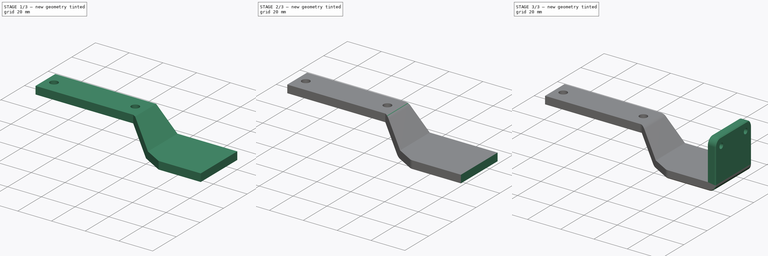
[diagram: build sequence overview — one tinted view per stage of 3, left to right]
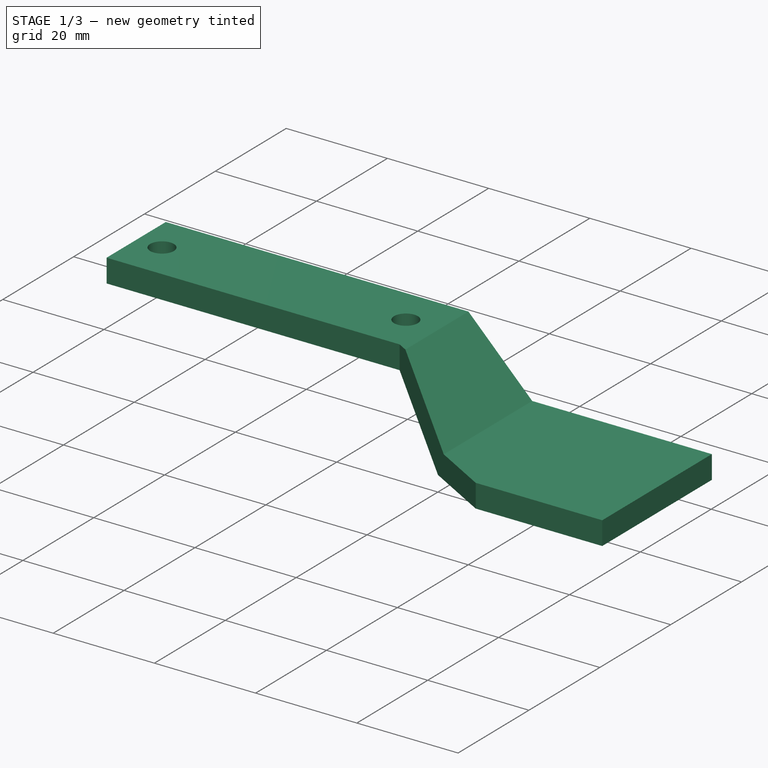
[diagram: stage 1 of 3 — iso view after this stage's code; geometry added in this stage tinted green]
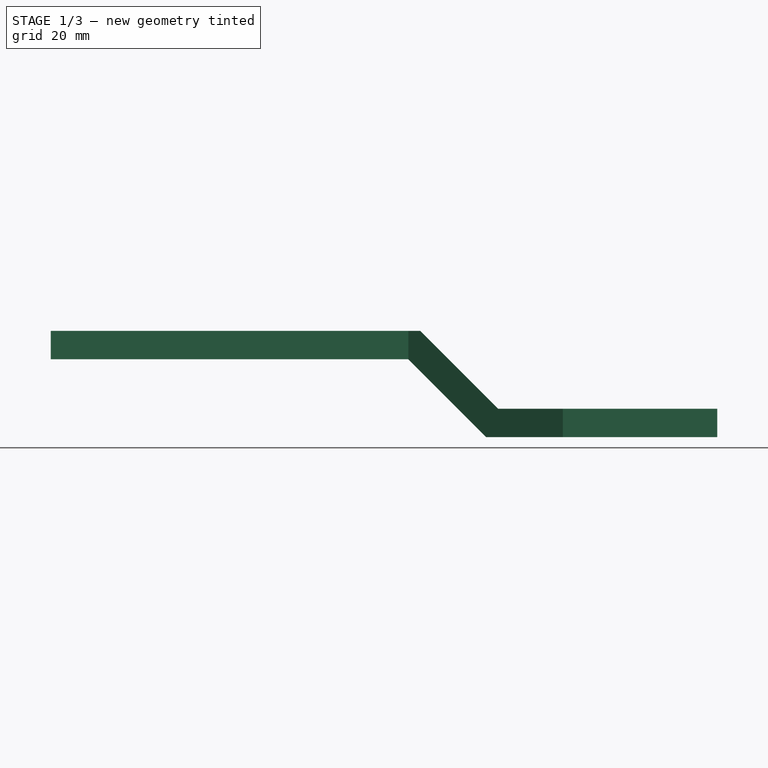
[diagram: stage 1 of 3 — front view after this stage's code; geometry added in this stage tinted green]
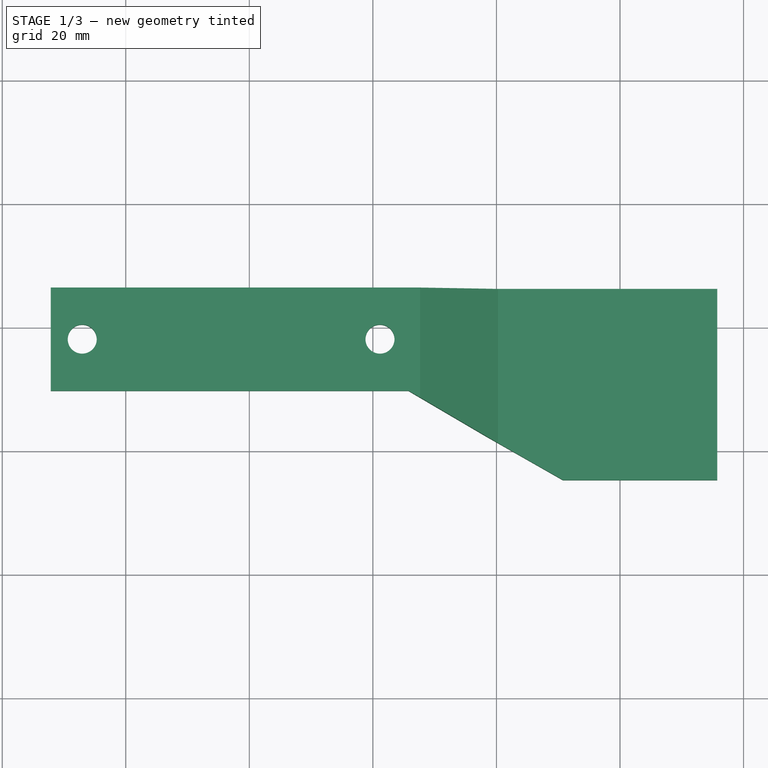
[diagram: stage 1 of 3 — top view after this stage's code; geometry added in this stage tinted green]
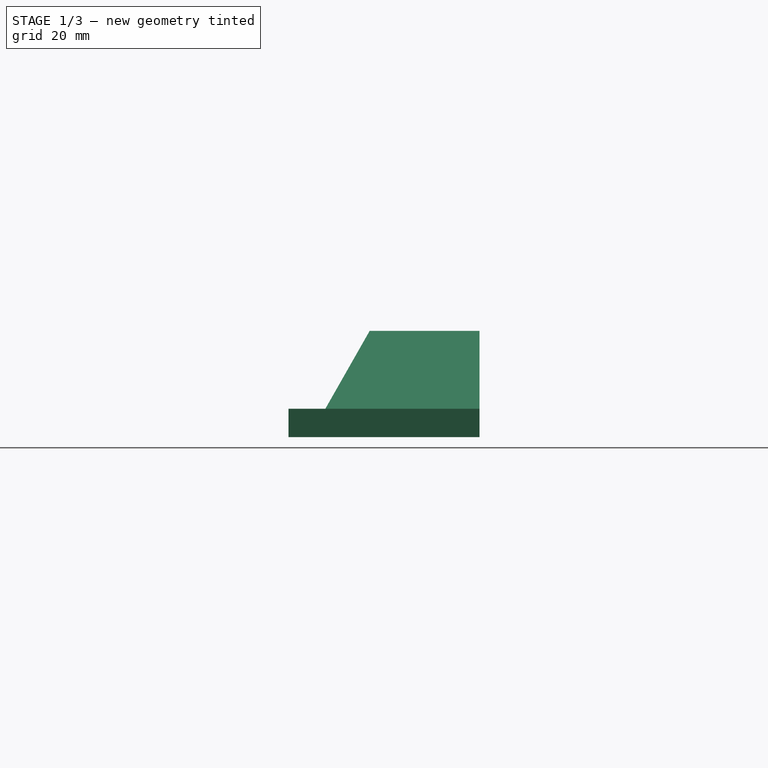
[diagram: stage 1 of 3 — right view after this stage's code; geometry added in this stage tinted green]
FCSTD DOCUMENT  (FreeCAD 2023.810R14555 (Git shallow))
Label: left-side nozzle brush mount
License: All rights reserved
LicenseURL: https://en.wikipedia.org/wiki/All_rights_reserved
objects: PartDesign::SubShapeBinder×8, Sketcher::SketchObject×4, PartDesign::Pad×3, Part::Feature×2, Part::Refine×2, PartDesign::Pocket×2, PartDesign::Fillet×2, PartDesign::Chamfer×1, PartDesign::Body×1
note: 45 computed .brp shape members not serialized (recipe doc carries the construction recipe); baked Part::Feature solids carry a one-line shape summary decoded from their .brp

FEATURE [Part::Feature] z_bed_rear001_solid  label="z_bed_rear001 (Solid)"
  FixShape = 1
  InvalidShape = false
  TreeRank = 4
  ValidateShape = false
  shape: bbox 28.5 x 54.5 x 16 mm, 10338 faces (baked)
FEATURE [Part::Feature] nozzle_brush_mount001_solid  label="nozzle_brush_mount001 (Solid)"
  FixShape = 1
  InvalidShape = false
  TreeRank = 6
  ValidateShape = false
  shape: bbox 57.9 x 44.7 x 22.55 mm, 1544 faces (baked)
FEATURE [Part::Refine] Refined  label="z_bed_rear001 (Solid)001"
  FixShape = 1
  InvalidShape = false
  Source = -> z_bed_rear001_solid
  TreeRank = 7
  ValidateShape = false
FEATURE [Part::Refine] Refined001  label="nozzle_brush_mount001 (Solid)001"
  FixShape = 1
  InvalidShape = false
  Source = -> nozzle_brush_mount001_solid
  TreeRank = 8
  ValidateShape = false
FEATURE [PartDesign::SubShapeBinder] Binder  label="Binder(z_bed_rear001 (Solid)001)"
  BindCopyOnChange = 0
  BindMode = 0
  ClaimChildren = false
  Context = -> Body [Binder.]
  EdgeTolerance = 1e-06
  FillStyle = 0
  FixShape = 1
  Fuse = false
  InvalidShape = false
  MakeFace = true
  MergeEdges = true
  OffsetFill = false
  OffsetIntersection = false
  OffsetJoinType = 0
  OffsetOpenResult = false
  Outline = false
  PartialLoad = false
  Relative = true
  SplitEdges = false
  Support = -> [Refined[Face3578]]
  TightBound = false
  TreeRank = 21
  ValidateShape = false
  _Version = 8
FEATURE [PartDesign::SubShapeBinder] Binder001  label="Binder001(z_bed_rear001 (Solid)001)"
  BindCopyOnChange = 0
  BindMode = 0
  ClaimChildren = false
  Context = -> Body [Binder001.]
  EdgeTolerance = 1e-06
  FillStyle = 0
  FixShape = 1
  Fuse = false
  InvalidShape = false
  MakeFace = true
  MergeEdges = true
  OffsetFill = false
  OffsetIntersection = false
  OffsetJoinType = 0
  OffsetOpenResult = false
  Outline = false
  PartialLoad = false
  Relative = true
  SplitEdges = false
  Support = -> [Refined[Face6035]]
  TightBound = false
  TreeRank = 22
  ValidateShape = false
  _Version = 8
FEATURE [PartDesign::SubShapeBinder] Binder002  label="Binder002(z_bed_rear001 (Solid)001)..."
  BindCopyOnChange = 0
  BindMode = 0
  ClaimChildren = false
  Context = -> Body [Binder002.]
  EdgeTolerance = 1e-06
  FillStyle = 0
  FixShape = 1
  Fuse = false
  InvalidShape = false
  MakeFace = true
  MergeEdges = true
  OffsetFill = false
  OffsetIntersection = false
  OffsetJoinType = 0
  OffsetOpenResult = false
  Outline = false
  PartialLoad = false
  Relative = true
  SplitEdges = false
  Support = -> [Refined[Face6010,Face6009,Face6007,Face6005,Face6006,Face6003]]
  TightBound = false
  TreeRank = 23
  ValidateShape = false
  _Version = 8
FEATURE [PartDesign::SubShapeBinder] Binder003  label="Binder003(z_bed_rear001 (Solid)001)..."
  BindCopyOnChange = 0
  BindMode = 0
  ClaimChildren = false
  Context = -> Body [Binder003.]
  EdgeTolerance = 1e-06
  FillStyle = 0
  FixShape = 1
  Fuse = false
  InvalidShape = false
  MakeFace = true
  MergeEdges = true
  OffsetFill = false
  OffsetIntersection = false
  OffsetJoinType = 0
  OffsetOpenResult = false
  Outline = false
  PartialLoad = false
  Relative = true
  SplitEdges = false
  Support = -> [Refined[Face5998],Binder002]
  TightBound = false
  TreeRank = 24
  ValidateShape = false
  _Version = 8
FEATURE [PartDesign::SubShapeBinder] Binder004  label="Binder004(nozzle_brush_mount001 (Solid)001)"
  BindCopyOnChange = 0
  BindMode = 0
  ClaimChildren = false
  Context = -> Body [Binder004.]
  EdgeTolerance = 1e-06
  FillStyle = 0
  FixShape = 1
  Fuse = false
  InvalidShape = false
  MakeFace = true
  MergeEdges = true
  OffsetFill = false
  OffsetIntersection = false
  OffsetJoinType = 0
  OffsetOpenResult = false
  Outline = false
  PartialLoad = false
  Relative = true
  SplitEdges = false
  Support = -> [Refined001[Face12]]
  TightBound = false
  TreeRank = 25
  ValidateShape = false
  _Version = 8
FEATURE [PartDesign::SubShapeBinder] Binder005  label="Binder005(z_bed_rear001 (Solid)001)..."
  BindCopyOnChange = 0
  BindMode = 0
  ClaimChildren = false
  Context = -> Body [Binder005.]
  EdgeTolerance = 1e-06
  FillStyle = 0
  FixShape = 1
  Fuse = false
  InvalidShape = false
  MakeFace = true
  MergeEdges = true
  OffsetFill = false
  OffsetIntersection = false
  OffsetJoinType = 0
  OffsetOpenResult = false
  Outline = false
  PartialLoad = false
  Relative = true
  SplitEdges = false
  Support = -> [Refined[Face6000,Face5999,Face6001]]
  TightBound = false
  TreeRank = 27
  ValidateShape = false
  _Version = 8
FEATURE [PartDesign::SubShapeBinder] Binder006  label="Binder006(z_bed_rear001 (Solid)001)"
  BindCopyOnChange = 0
  BindMode = 0
  ClaimChildren = false
  Context = -> Body [Binder006.]
  EdgeTolerance = 1e-06
  FillStyle = 0
  FixShape = 1
  Fuse = false
  InvalidShape = false
  MakeFace = true
  MergeEdges = true
  OffsetFill = false
  OffsetIntersection = false
  OffsetJoinType = 0
  OffsetOpenResult = false
  Outline = false
  PartialLoad = false
  Relative = true
  SplitEdges = false
  Support = -> [Refined[Face6017]]
  TightBound = false
  TreeRank = 37
  ValidateShape = false
  _Version = 8
FEATURE [PartDesign::SubShapeBinder] Binder007  label="Binder007(z_bed_rear001 (Solid)001)"
  BindCopyOnChange = 0
  BindMode = 0
  ClaimChildren = false
  Context = -> Body [Binder007.]
  EdgeTolerance = 1e-06
  FillStyle = 0
  FixShape = 1
  Fuse = false
  InvalidShape = false
  MakeFace = true
  MergeEdges = true
  OffsetFill = false
  OffsetIntersection = false
  OffsetJoinType = 0
  OffsetOpenResult = false
  Outline = false
  PartialLoad = false
  Relative = true
  SplitEdges = false
  Support = -> [Refined[Face6017]]
  TightBound = false
  TreeRank = 41
  ValidateShape = false
  _Version = 8
FEATURE [Sketcher::SketchObject] Sketch
  ArcFitTolerance = 1e-06
  AttachmentSupport = -> [Binder]
  ExternalBSplineMaxDegree = 5
  ExternalBSplineTolerance = 0.0001
  ExternalGeometry = -> [Binder002,Binder005,Binder003,Binder,Binder001,Binder004,Binder007]
  FixShape = 1
  FullyConstrained = true
  InternalTolerance = 1e-06
  InvalidShape = false
  MakeInternals = false
  MapMode = 5
  Placement = pos=(0,0,3.2e-15) rot=(1,0,0;3.14159rad)
  Support = -> [Binder]
  TreeRank = 26
  ValidateShape = false
  sketch-geometry (22):
    g0: Circle [constr] CenterX=125.75 CenterY=-124.249 CenterZ=0 NormalX=0 NormalY=0 NormalZ=1 AngleXU=0 Radius=5.5
    g1: Circle [constr] CenterX=125.75 CenterY=-139.549 CenterZ=0 NormalX=0 NormalY=0 NormalZ=1 AngleXU=0 Radius=5.5
    g2: Circle [constr] CenterX=125.75 CenterY=-139.549 CenterZ=0 NormalX=0 NormalY=0 NormalZ=1 AngleXU=0 Radius=2.7
    g3: Circle [constr] CenterX=125.75 CenterY=-124.249 CenterZ=0 NormalX=0 NormalY=0 NormalZ=1 AngleXU=0 Radius=2.7
    g4: LineSegment StartX=113.75 StartY=-146.249 StartZ=0 EndX=132.75 EndY=-146.249 EndZ=0
    g5: LineSegment StartX=135.75 StartY=-146.249 StartZ=0 EndX=135.75 EndY=-115.319 EndZ=0
    g6: LineSegment StartX=135.75 StartY=-115.319 StartZ=0 EndX=110.75 EndY=-115.319 EndZ=0
    g7: LineSegment StartX=27.85 StartY=-146.249 StartZ=0 EndX=27.85 EndY=-129.549 EndZ=0
    g8: LineSegment StartX=113.75 StartY=-146.249 StartZ=0 EndX=85.75 EndY=-146.249 EndZ=0
    g9: LineSegment StartX=85.75 StartY=-146.249 StartZ=0 EndX=27.85 EndY=-146.249 EndZ=0
    g10: Circle [constr] CenterX=15.0632 CenterY=-45.6687 CenterZ=0 NormalX=0 NormalY=0 NormalZ=1 AngleXU=0 Radius=2.35
    g11: Circle [constr] CenterX=63.2632 CenterY=-45.6687 CenterZ=0 NormalX=0 NormalY=0 NormalZ=1 AngleXU=0 Radius=2.35
    g12: LineSegment [constr] StartX=15.0632 StartY=-45.6687 StartZ=0 EndX=9.9632 EndY=-45.6687 EndZ=0
    g13: LineSegment [constr] StartX=63.2632 StartY=-45.6687 StartZ=0 EndX=67.8632 EndY=-45.6687 EndZ=0
    g14: LineSegment [constr] StartX=27.85 StartY=-146.249 StartZ=0 EndX=27.85 EndY=-137.899 EndZ=0
    g15: LineSegment [constr] StartX=27.85 StartY=-137.899 StartZ=0 EndX=32.95 EndY=-137.899 EndZ=0
    g16: LineSegment [constr] StartX=81.15 StartY=-137.899 StartZ=0 EndX=85.75 EndY=-137.899 EndZ=0
    g17: LineSegment StartX=27.85 StartY=-129.549 StartZ=0 EndX=85.75 EndY=-129.549 EndZ=0
    g18: LineSegment StartX=85.75 StartY=-129.549 StartZ=0 EndX=110.75 EndY=-115.319 EndZ=0
    g19: Circle CenterX=32.95 CenterY=-137.899 CenterZ=0 NormalX=0 NormalY=0 NormalZ=1 AngleXU=0 Radius=2.35
    g20: Circle CenterX=81.15 CenterY=-137.899 CenterZ=0 NormalX=0 NormalY=0 NormalZ=1 AngleXU=0 Radius=2.35
    g21: LineSegment StartX=132.75 StartY=-146.249 StartZ=0 EndX=135.75 EndY=-146.249 EndZ=0
  constraints (60):
    c: PointOnObject(g-6,g0)
    c: PointOnObject(g-5,g0)
    c: PointOnObject(g-10,g0)
    c: PointOnObject(g-8,g1)
    c: PointOnObject(g-7,g1)
    c: PointOnObject(g-9,g1)
    c: Coincident(g2,g1)
    c: PointOnObject(g-4,g2)
    c: Coincident(g3,g0)
    c: PointOnObject(g-3,g3)
    c: Coincident(g-11,g4)
    c: Coincident(g4,g-11)
    c: Vertical(g5)
    c: Coincident(g6,g-12)
    c: Horizontal(g6)
    c: Vertical(g7)
    c: Equal(g-13,g7)
    c: Coincident(g8,g4)
    c: Horizontal(g8)
    c: Coincident(g9,g8)
    c: Coincident(g9,g7)
    c: Horizontal(g9)
    c: DistanceX(g8,g-12) = 25
    c: Equal(g9,g-14)
    c: PointOnObject(g-16,g10)
    c: PointOnObject(g-17,g10)
    c: PointOnObject(g-21,g10)
    c: PointOnObject(g-18,g11)
    c: PointOnObject(g-19,g11)
    c: PointOnObject(g-20,g11)
    c: Coincident(g12,g10)
    c: PointOnObject(g12,g-13)
    c: Horizontal(g12)
    c: Coincident(g13,g11)
    c: PointOnObject(g13,g-15)
    c: Horizontal(g13)
    c: Coincident(g14,g7)
    c: Coincident(g15,g14)
    c: Horizontal(g15)
    c: Horizontal(g16)
    c: Vertical(g16,g8)
    c: Equal(g16,g13)
    c: Equal(g12,g15)
    c: Symmetric(g7,g7,g14)
    c: Horizontal(g15,g16)
    c: Coincident(g17,g7)
    c: Horizontal(g17)
    c: Coincident(g18,g17)
    c: Coincident(g18,g6)
    c: Coincident(g19,g15)
    c: Coincident(g20,g16)
    c: Equal(g10,g19)
    c: Equal(g11,g20)
    c: Diameter(g0) = 11
    c: Vertical(g8,g17)
    c: Coincident(g6,g5)
    c: Coincident(g21,g4)
    c: Horizontal(g21)
    c: PointOnObject(g-22,g5)
    c: Coincident(g5,g21)
FEATURE [PartDesign::Pad] Pad
  AddSubType = 0
  AlongSketchNormal = false
  AutoTaperInnerAngle = true
  CheckUpToFaceLimits = true
  ClaimChildren = false
  Direction = (0,0,-1)
  Fit = 0
  FitJoin = 0
  FixShape = 1
  InnerFit = 0
  InnerFitJoin = 0
  InvalidShape = false
  Length = 4.6
  Length2 = 12.6
  Linearize = true
  NewSolid = false
  Profile = -> Sketch
  ReferenceAxis = -> Sketch [N_Axis]
  Refine = true
  Suppress = false
  TaperInnerAngle = 0
  TaperInnerAngleRev = 0
  TreeRank = 28
  Type = 4
  ValidateShape = false
  _ProfileBasedVersion = 1
FEATURE [Sketcher::SketchObject] Sketch001
  ArcFitTolerance = 1e-06
  AttachmentSupport = -> [XZ_Plane]
  ExternalBSplineMaxDegree = 5
  ExternalBSplineTolerance = 0.0001
  ExternalGeometry = -> [Binder,Binder001,Binder007]
  FixShape = 1
  FullyConstrained = true
  InternalTolerance = 1e-06
  InvalidShape = false
  MakeInternals = false
  MapMode = 5
  Placement = pos=(0,0,0) rot=(1,0,0;1.5708rad)
  Support = -> [XZ_Plane]
  TreeRank = 30
  ValidateShape = false
  sketch-geometry (4):
    g0: LineSegment StartX=110.75 StartY=3.1e-14 StartZ=0 EndX=135.75 EndY=3.1e-14 EndZ=0
    g1: LineSegment StartX=135.75 StartY=3.1e-14 StartZ=0 EndX=135.75 EndY=15 EndZ=0
    g2: LineSegment StartX=135.75 StartY=15 StartZ=0 EndX=110.75 EndY=15 EndZ=0
    g3: LineSegment StartX=110.75 StartY=15 StartZ=0 EndX=110.75 EndY=3.02e-14 EndZ=0
  constraints (11):
    c: Coincident(g2,g3)
    c: Coincident(g3,g0)
    c: Horizontal(g0)
    c: Horizontal(g2)
    c: Vertical(g1)
    c: Vertical(g3)
    c: Coincident(g2,g-5)
    c: PointOnObject(g-6,g1)
    c: Coincident(g1,g2)
    c: Coincident(g0,g1)
    c: PointOnObject(g-3,g0)
FEATURE [PartDesign::Pocket] Pocket
  AddSubType = 1
  AlongSketchNormal = false
  AutoTaperInnerAngle = true
  BaseFeature = -> Pad
  CheckUpToFaceLimits = true
  ClaimChildren = false
  Direction = (0,1,-2e-16)
  Fit = 0
  FitJoin = 0
  FixShape = 1
  InnerFit = 0
  InnerFitJoin = 0
  InvalidShape = false
  Length = 5
  Length2 = 10
  Linearize = true
  Midplane = true
  NewSolid = false
  Profile = -> Sketch001
  ReferenceAxis = -> Sketch001 [N_Axis]
  Refine = true
  Suppress = false
  TaperInnerAngle = 0
  TaperInnerAngleRev = 0
  TreeRank = 31
  Type = 1
  ValidateShape = false
  _ProfileBasedVersion = 1
  _Version = 1
FEATURE [Sketcher::SketchObject] Sketch002
  ArcFitTolerance = 1e-06
  AttachmentSupport = -> [XZ_Plane]
  ExternalBSplineMaxDegree = 5
  ExternalBSplineTolerance = 0.0001
  ExternalGeometry = -> [Sketch,Sketch001,Pocket]
  FixShape = 1
  FullyConstrained = true
  InternalTolerance = 1e-06
  InvalidShape = false
  MakeInternals = false
  MapMode = 5
  Placement = pos=(0,0,0) rot=(1,0,0;1.5708rad)
  Support = -> [XZ_Plane]
  TreeRank = 32
  ValidateShape = false
  sketch-geometry (14):
    g0: LineSegment StartX=27.85 StartY=8 StartZ=0 EndX=85.75 EndY=8 EndZ=0
    g1: LineSegment StartX=85.75 StartY=8 StartZ=0 EndX=98.35 EndY=-4.6 EndZ=0
    g2: LineSegment StartX=98.35 StartY=-4.6 StartZ=0 EndX=110.75 EndY=-4.6 EndZ=0
    g3: LineSegment StartX=110.75 StartY=-4.6 StartZ=0 EndX=110.75 EndY=-17 EndZ=0
    g4: LineSegment StartX=110.75 StartY=-17 StartZ=0 EndX=15.45 EndY=-17 EndZ=0
    g5: LineSegment StartX=15.45 StartY=-17 StartZ=0 EndX=15.45 EndY=8 EndZ=0
    g6: LineSegment StartX=15.45 StartY=8 StartZ=0 EndX=27.85 EndY=8 EndZ=0
    g7: LineSegment StartX=110.75 StartY=3.02e-14 StartZ=0 EndX=100.255 EndY=0 EndZ=0
    g8: LineSegment StartX=100.255 StartY=0 StartZ=0 EndX=87.6554 EndY=12.6 EndZ=0
    g9: LineSegment StartX=87.6554 StartY=12.6 StartZ=0 EndX=87.6554 EndY=25 EndZ=0
    g10: LineSegment StartX=87.6554 StartY=25 StartZ=0 EndX=110.75 EndY=25 EndZ=0
    g11: LineSegment StartX=110.75 StartY=25 StartZ=0 EndX=110.75 EndY=2.84e-14 EndZ=0
    g12: LineSegment [constr] StartX=85.75 StartY=8 StartZ=0 EndX=85.75 EndY=12.6 EndZ=0
    g13: LineSegment [constr] StartX=100.255 StartY=0 StartZ=0 EndX=97.0027 EndY=-3.25269 EndZ=0
  constraints (39):
    c: Horizontal(g0)
    c: Coincident(g0,g1)
    c: Vertical(g-3,g0)
    c: Vertical(g0,g-3)
    c: DistanceY(g-3,g0) = 8
    c: Coincident(g2,g1)
    c: Coincident(g2,g-5)
    c: Horizontal(g2)
    c: Coincident(g3,g2)
    c: Vertical(g3)
    c: Coincident(g4,g3)
    c: Horizontal(g4)
    c: Coincident(g5,g4)
    c: Vertical(g5)
    c: Coincident(g6,g5)
    c: Coincident(g6,g0)
    c: Horizontal(g6)
    c: Coincident(g-4,g7)
    c: PointOnObject(g7,g-1)
    c: Coincident(g7,g8)
    c: Coincident(g8,g9)
    c: Coincident(g9,g10)
    c: Horizontal(g10)
    c: Coincident(g10,g11)
    c: Coincident(g11,g7)
    c: Vertical(g11)
    c: Equal(g6,g2)
    c: Equal(g3,g6)
    c: Parallel(g1,g8)
    c: Vertical(g9)
    c: Equal(g9,g2)
    c: PointOnObject(g8,g-6)
    c: Coincident(g12,g0)
    c: Coincident(g12,g-6)
    c: Coincident(g13,g7)
    c: PointOnObject(g13,g1)
    c: Perpendicular(g1,g13)
    c: Equal(g13,g12)
    c: Angle(g8) = 2.35619
FEATURE [PartDesign::Pocket] Pocket001
  AddSubType = 1
  AlongSketchNormal = false
  AutoTaperInnerAngle = true
  BaseFeature = -> Pocket
  CheckUpToFaceLimits = true
  ClaimChildren = false
  Direction = (0,1,-2e-16)
  Fit = 0
  FitJoin = 0
  FixShape = 1
  InnerFit = 0
  InnerFitJoin = 0
  InvalidShape = false
  Length = 5
  Length2 = 10
  Linearize = true
  Midplane = true
  NewSolid = false
  Profile = -> Sketch002
  ReferenceAxis = -> Sketch002 [N_Axis]
  Refine = true
  Suppress = false
  TaperInnerAngle = 0
  TaperInnerAngleRev = 0
  TreeRank = 33
  Type = 1
  ValidateShape = false
  _ProfileBasedVersion = 1
  _Version = 1
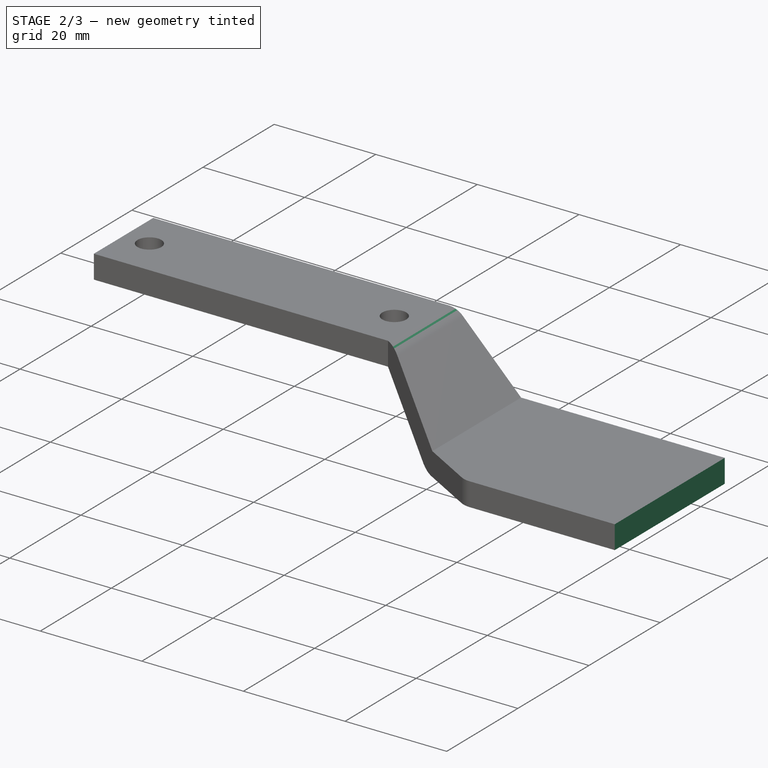
[diagram: stage 2 of 3 — iso view after this stage's code; geometry added in this stage tinted green]
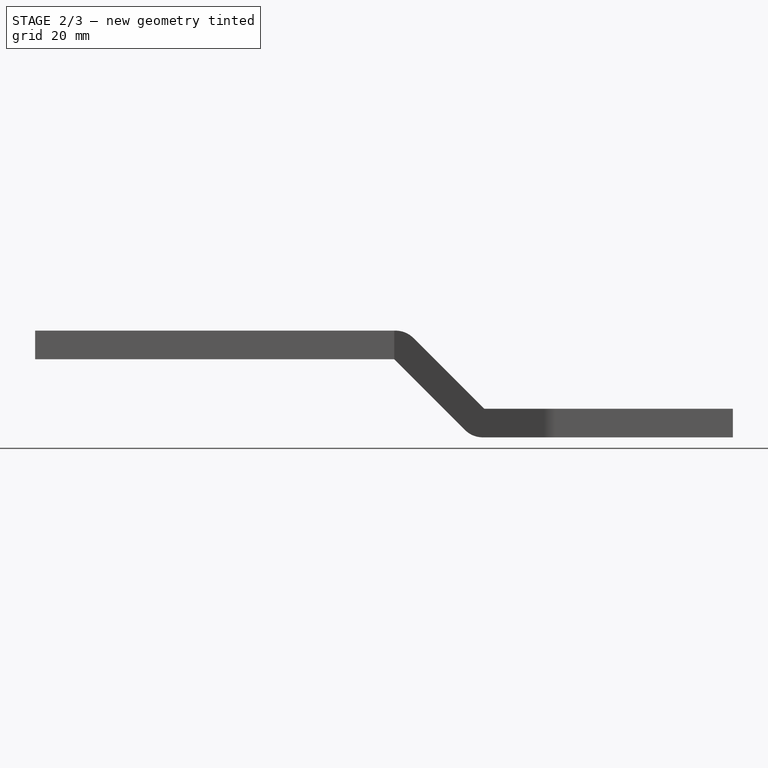
[diagram: stage 2 of 3 — front view after this stage's code; geometry added in this stage tinted green]
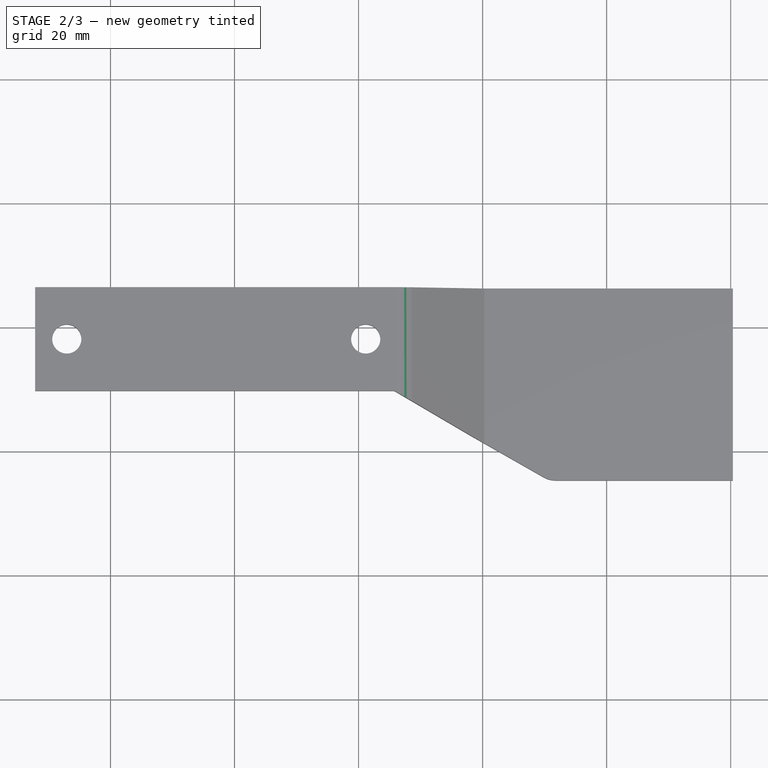
[diagram: stage 2 of 3 — top view after this stage's code; geometry added in this stage tinted green]
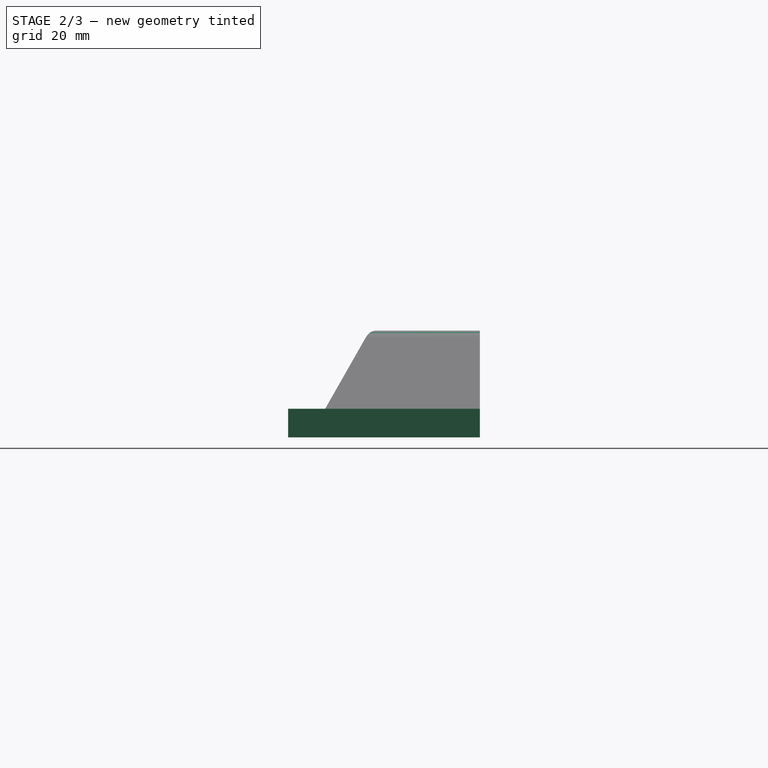
[diagram: stage 2 of 3 — right view after this stage's code; geometry added in this stage tinted green]
FEATURE [PartDesign::Fillet] Fillet
  AddSubType = 0
  Base = -> Pocket001 [Edge28,Edge6,Edge29]
  BaseFeature = -> Pocket001
  FixShape = 1
  InvalidShape = false
  NewSolid = false
  Radius = 4
  Refine = true
  SupportTransform = false
  Suppress = false
  TreeRank = 34
  UseAllEdges = false
  ValidateShape = false
FEATURE [PartDesign::Pad] Pad001
  AddSubType = 0
  AlongSketchNormal = false
  AutoTaperInnerAngle = true
  BaseFeature = -> Fillet
  CheckUpToFaceLimits = true
  ClaimChildren = false
  Direction = (1,0,0)
  Fit = 0
  FitJoin = 0
  FixShape = 1
  InnerFit = 0
  InnerFitJoin = 0
  InvalidShape = false
  Length = 4.6
  Length2 = 10
  Linearize = true
  NewSolid = false
  Profile = -> Fillet [Face4]
  Refine = true
  Suppress = false
  TaperInnerAngle = 0
  TaperInnerAngleRev = 0
  TreeRank = 35
  Type = 0
  ValidateShape = false
  _ProfileBasedVersion = 1
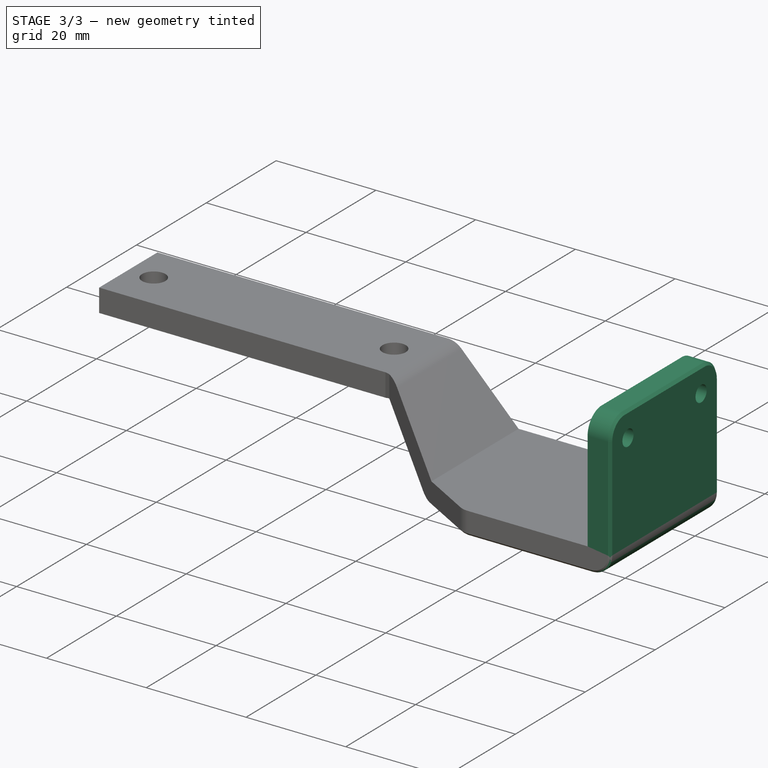
[diagram: stage 3 of 3 — iso view after this stage's code; geometry added in this stage tinted green]
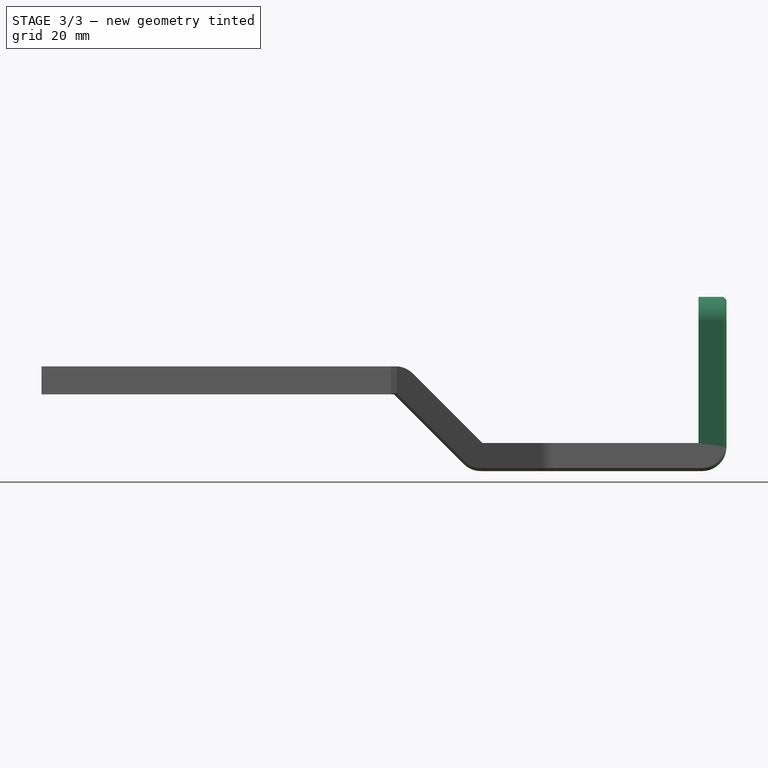
[diagram: stage 3 of 3 — front view after this stage's code; geometry added in this stage tinted green]
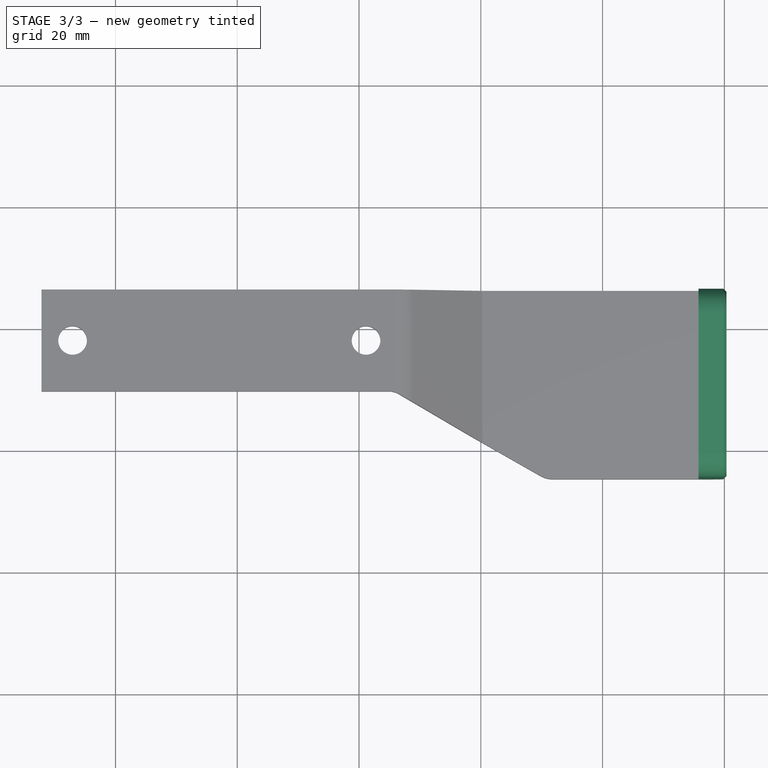
[diagram: stage 3 of 3 — top view after this stage's code; geometry added in this stage tinted green]
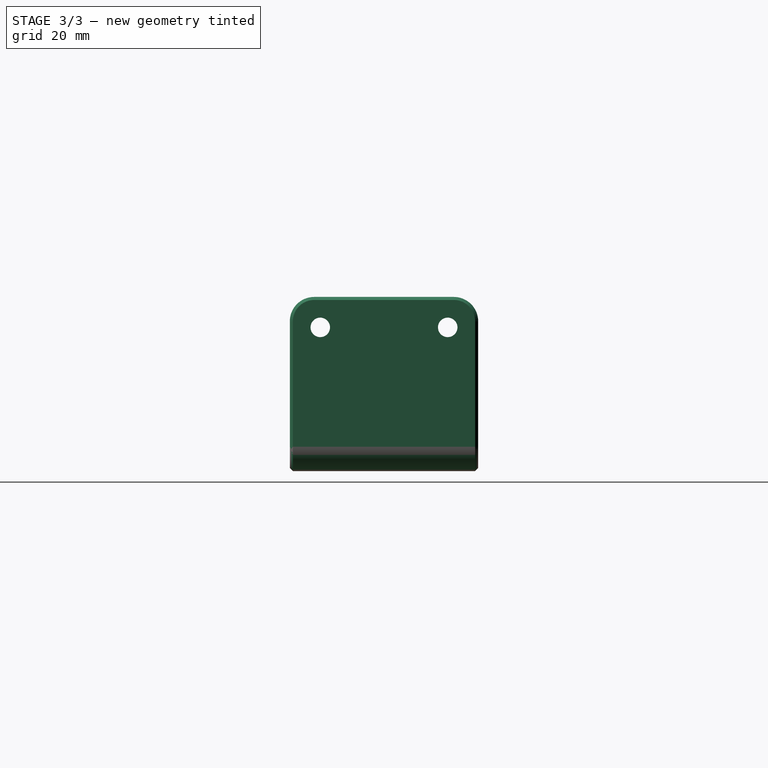
[diagram: stage 3 of 3 — right view after this stage's code; geometry added in this stage tinted green]
FEATURE [Sketcher::SketchObject] Sketch003
  ArcFitTolerance = 1e-06
  AttachmentSupport = -> [Pad001]
  ExternalBSplineMaxDegree = 5
  ExternalBSplineTolerance = 0.0001
  ExternalGeometry = -> [Binder006,Pad001]
  FixShape = 1
  FullyConstrained = true
  InternalTolerance = 1e-06
  InvalidShape = false
  MakeInternals = false
  MapMode = 5
  Placement = pos=(140.35,0,0) rot=(0.57735,0.57735,0.57735;2.0944rad)
  Support = -> [Pad001]
  TreeRank = 36
  ValidateShape = false
  sketch-geometry (9):
    g0: LineSegment [constr] StartX=144.249 StartY=9 StartZ=0 EndX=144.249 EndY=19 EndZ=0
    g1: LineSegment StartX=115.319 StartY=-4.6 StartZ=0 EndX=146.249 EndY=-4.6 EndZ=0
    g2: LineSegment StartX=146.249 StartY=-4.6 StartZ=0 EndX=146.249 EndY=24 EndZ=0
    g3: LineSegment StartX=146.249 StartY=24 StartZ=0 EndX=115.319 EndY=24 EndZ=0
    g4: LineSegment StartX=115.319 StartY=24 StartZ=0 EndX=115.319 EndY=-4.6 EndZ=0
    g5: LineSegment [constr] StartX=146.249 StartY=19 StartZ=0 EndX=141.249 EndY=19 EndZ=0
    g6: LineSegment [constr] StartX=115.319 StartY=19 StartZ=0 EndX=120.319 EndY=19 EndZ=0
    g7: Circle CenterX=141.249 CenterY=19 CenterZ=0 NormalX=0 NormalY=0 NormalZ=1 AngleXU=0 Radius=1.6
    g8: Circle CenterX=120.319 CenterY=19 CenterZ=0 NormalX=0 NormalY=0 NormalZ=1 AngleXU=0 Radius=1.6
  constraints (25):
    c: Coincident(g0,g-3)
    c: Vertical(g0)
    c: DistanceY(g0,g0) = 10
    c: Coincident(g1,g2)
    c: Coincident(g2,g3)
    c: Coincident(g3,g4)
    c: Coincident(g4,g1)
    c: Horizontal(g3)
    c: Vertical(g2)
    c: Vertical(g4)
    c: PointOnObject(g5,g2)
    c: Horizontal(g5)
    c: PointOnObject(g6,g4)
    c: Horizontal(g6)
    c: PointOnObject(g0,g5)
    c: Equal(g5,g6)
    c: Horizontal(g6,g5)
    c: Coincident(g7,g5)
    c: Coincident(g8,g6)
    c: Equal(g8,g7)
    c: Diameter(g8) = 3.2
    c: DistanceY(g5,g2) = 5
    c: Coincident(g1,g-4)
    c: Coincident(g1,g-4)
    c: DistanceX(g6,g6) = 5
FEATURE [PartDesign::Pad] Pad002
  AddSubType = 0
  AlongSketchNormal = false
  AutoTaperInnerAngle = true
  BaseFeature = -> Pad001
  CheckUpToFaceLimits = true
  ClaimChildren = false
  Direction = (1,0,0)
  Fit = 0
  FitJoin = 0
  FixShape = 1
  InnerFit = 0
  InnerFitJoin = 0
  InvalidShape = false
  Length = 10
  Length2 = 10
  Linearize = true
  NewSolid = false
  Profile = -> Sketch003
  ReferenceAxis = -> Sketch003 [N_Axis]
  Refine = true
  Suppress = false
  TaperInnerAngle = 0
  TaperInnerAngleRev = 0
  TreeRank = 38
  Type = 3
  UpToFace = -> Binder006 [Face1]
  ValidateShape = false
  _ProfileBasedVersion = 1
FEATURE [PartDesign::Fillet] Fillet001
  AddSubType = 0
  Base = -> Pad002 [Edge55,Edge45,Edge44]
  BaseFeature = -> Pad002
  FixShape = 1
  InvalidShape = false
  NewSolid = false
  Radius = 4
  Refine = true
  SupportTransform = false
  Suppress = false
  TreeRank = 39
  UseAllEdges = false
  ValidateShape = false
  expr: Radius = Fillet.Radius
FEATURE [PartDesign::Chamfer] Chamfer
  AddSubType = 0
  Angle = 45
  Base = -> Fillet001 [Edge32,Edge47]
  BaseFeature = -> Fillet001
  ChamferType = 0
  FixShape = 1
  FlipDirection = false
  InvalidShape = false
  NewSolid = false
  Refine = true
  Size = 0.5
  Size2 = 1
  SupportTransform = false
  Suppress = false
  TreeRank = 40
  UseAllEdges = false
  ValidateShape = false
FEATURE [PartDesign::Body] Body
  AutoGroupSolids = false
  ClaimAllChildren = false
  ExportMode = 0
  FixShape = 1
  Group = -> [Binder,Binder001,Binder002,Binder003,Binder004,Sketch,Binder005,Binder006,Binder007,Pad,Sketch001,Pocket,Sketch002,Pocket001,Fillet,Pad001,Sketch003,Pad002,Fillet001,Chamfer]
  InvalidShape = false
  Origin = -> Origin
  Tip = -> Chamfer
  TreeRank = 20
  ValidateShape = false
  _ExportChildren = -> [Binder,Binder001,Binder002,Binder003,Binder004,Binder005,Binder006,Binder007,Pad,Pocket,Pocket001,Fillet,Pad001,Pad002,Fillet001,Chamfer]
  _GroupVersion = 1
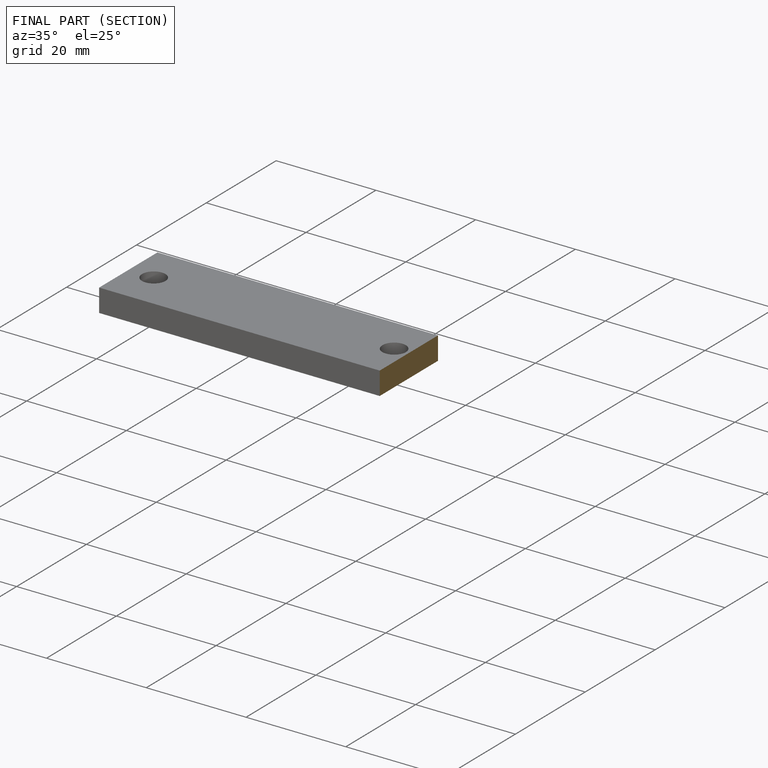
[diagram: finished part — half-section view (interior)]
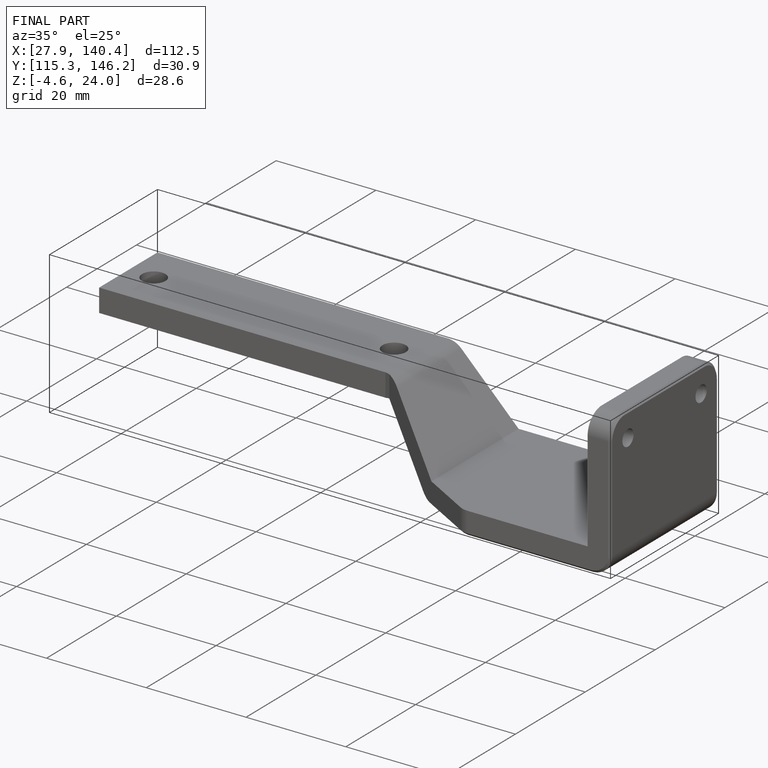
[diagram: finished part — iso view with bounding-box wireframe]
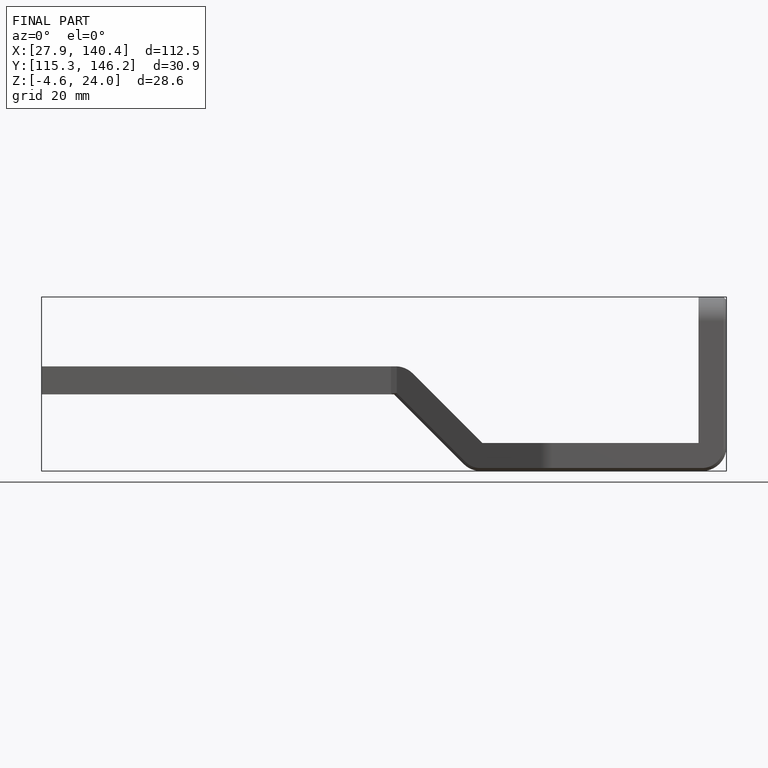
[diagram: finished part — front view with bounding-box wireframe]
